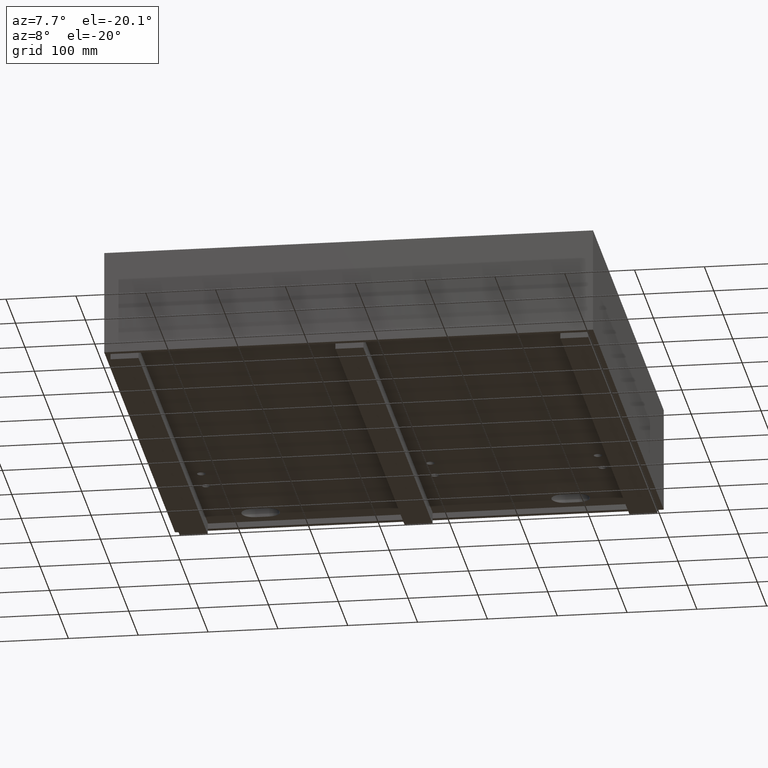
[diagram: clean part render]
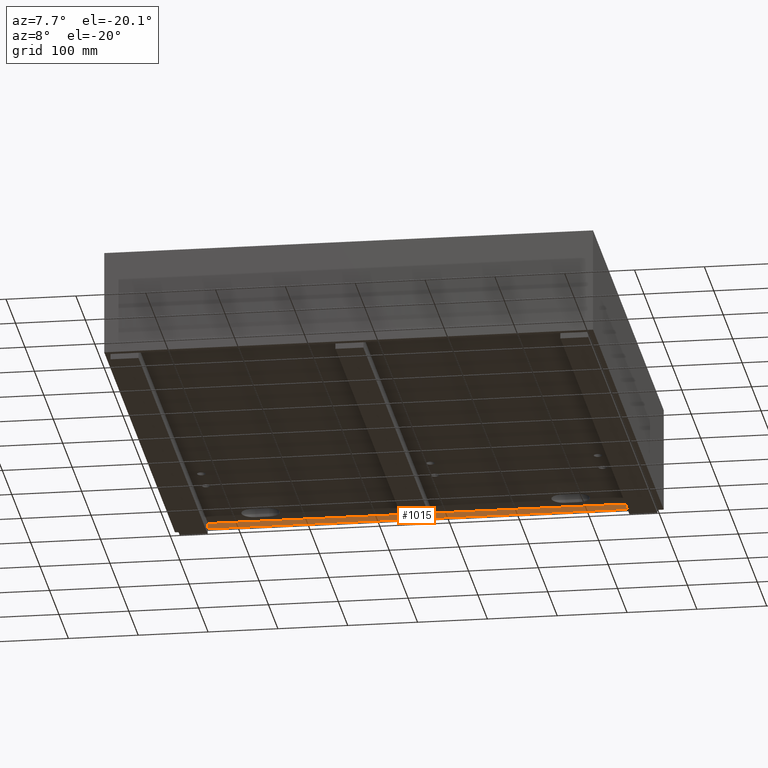
[diagram: same view with one face highlighted and labeled with its STEP entity id]
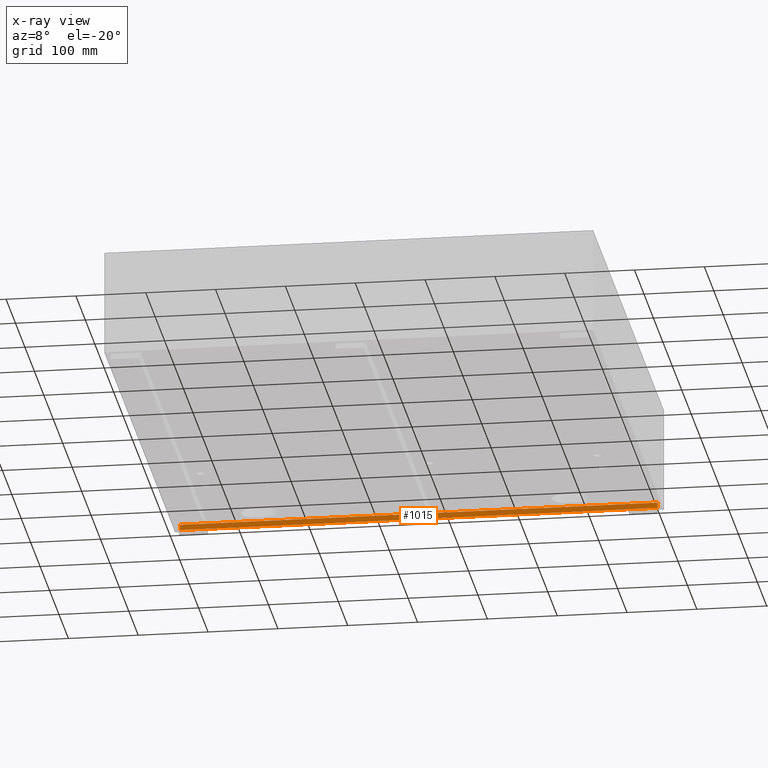
[diagram: x-ray of the same camera — body ghosted, the highlighted face saturated]
A machine part, auxiliary view. The second image highlights one B-rep face of the part: STEP entity #1015.
The next image is the same camera in x-ray: the body ghosted, the highlighted face saturated — about 0% of this face is hidden behind the body in this view.
In plain terms, the highlighted planar face has unit normal (0, 1, 0).
Its self-contained STEP definition (entity closure, byte-faithful):
#77 = EDGE_CURVE ( 'NONE', #10600, #4721, #9903, .T. ) ;
#171 = VECTOR ( 'NONE', #1115, 1000.000000000000000 ) ;
#287 = VECTOR ( 'NONE', #4144, 1000.000000000000000 ) ;
#544 = CARTESIAN_POINT ( 'NONE',  ( 8.000000000000007105, 741.9999000000000251, -150.0000000000000000 ) ) ;
#702 = CARTESIAN_POINT ( 'NONE',  ( 0.0000000000000000000, 741.9999000000000251, -150.0000000000000000 ) ) ;
#1015 = ADVANCED_FACE ( 'NONE', ( #10268 ), #2551, .F. ) ;
#1115 = DIRECTION ( 'NONE',  ( 0.0000000000000000000, 0.0000000000000000000, -1.000000000000000000 ) ) ;
#1685 = DIRECTION ( 'NONE',  ( 0.0000000000000000000, -0.0000000000000000000, 1.000000000000000000 ) ) ;
#1896 = EDGE_CURVE ( 'NONE', #10600, #9251, #7051, .T. ) ;
#2112 = CARTESIAN_POINT ( 'NONE',  ( 692.0000000000000000, 741.9999000000000251, 0.0000000000000000000 ) ) ;
#2185 = CARTESIAN_POINT ( 'NONE',  ( 700.0000000000000000, 741.9999000000000251, -142.0000000000001137 ) ) ;
#2551 = PLANE ( 'NONE',  #6857 ) ;
#2860 = VERTEX_POINT ( 'NONE', #8505 ) ;
#3668 = ORIENTED_EDGE ( 'NONE', *, *, #77, .F. ) ;
#3841 = VECTOR ( 'NONE', #5550, 1000.000000000000000 ) ;
#4090 = CARTESIAN_POINT ( 'NONE',  ( 692.0000000000000000, 741.9999000000000251, -142.0000000000001137 ) ) ;
#4144 = DIRECTION ( 'NONE',  ( -1.000000000000000000, -0.0000000000000000000, -0.0000000000000000000 ) ) ;
#4721 = VERTEX_POINT ( 'NONE', #4090 ) ;
#5008 = EDGE_CURVE ( 'NONE', #2860, #4721, #9827, .T. ) ;
#5550 = DIRECTION ( 'NONE',  ( 0.0000000000000000000, 0.0000000000000000000, 1.000000000000000000 ) ) ;
#5622 = DIRECTION ( 'NONE',  ( 1.000000000000000000, -0.0000000000000000000, 3.965082230804130590E-17 ) ) ;
#5985 = CARTESIAN_POINT ( 'NONE',  ( 0.0000000000000000000, 741.9999000000000251, 0.0000000000000000000 ) ) ;
#6325 = EDGE_LOOP ( 'NONE', ( #9841, #3668, #7523, #6344 ) ) ;
#6344 = ORIENTED_EDGE ( 'NONE', *, *, #7423, .F. ) ;
#6857 = AXIS2_PLACEMENT_3D ( 'NONE', #5985, #9415, #1685 ) ;
#7051 = LINE ( 'NONE', #8836, #171 ) ;
#7340 = CARTESIAN_POINT ( 'NONE',  ( 8.000000000000007105, 741.9999000000000251, -142.0000000000001421 ) ) ;
#7423 = EDGE_CURVE ( 'NONE', #2860, #9251, #8419, .T. ) ;
#7523 = ORIENTED_EDGE ( 'NONE', *, *, #1896, .T. ) ;
#8419 = LINE ( 'NONE', #702, #287 ) ;
#8505 = CARTESIAN_POINT ( 'NONE',  ( 692.0000000000000000, 741.9999000000000251, -150.0000000000000000 ) ) ;
#8836 = CARTESIAN_POINT ( 'NONE',  ( 8.000000000000007105, 741.9999000000000251, -150.0000000000000000 ) ) ;
#9251 = VERTEX_POINT ( 'NONE', #544 ) ;
#9415 = DIRECTION ( 'NONE',  ( 0.0000000000000000000, 1.000000000000000000, 0.0000000000000000000 ) ) ;
#9827 = LINE ( 'NONE', #2112, #3841 ) ;
#9841 = ORIENTED_EDGE ( 'NONE', *, *, #5008, .T. ) ;
#9903 = LINE ( 'NONE', #2185, #11150 ) ;
#10268 = FACE_OUTER_BOUND ( 'NONE', #6325, .T. ) ;
#10600 = VERTEX_POINT ( 'NONE', #7340 ) ;
#11150 = VECTOR ( 'NONE', #5622, 1000.000000000000000 ) ;